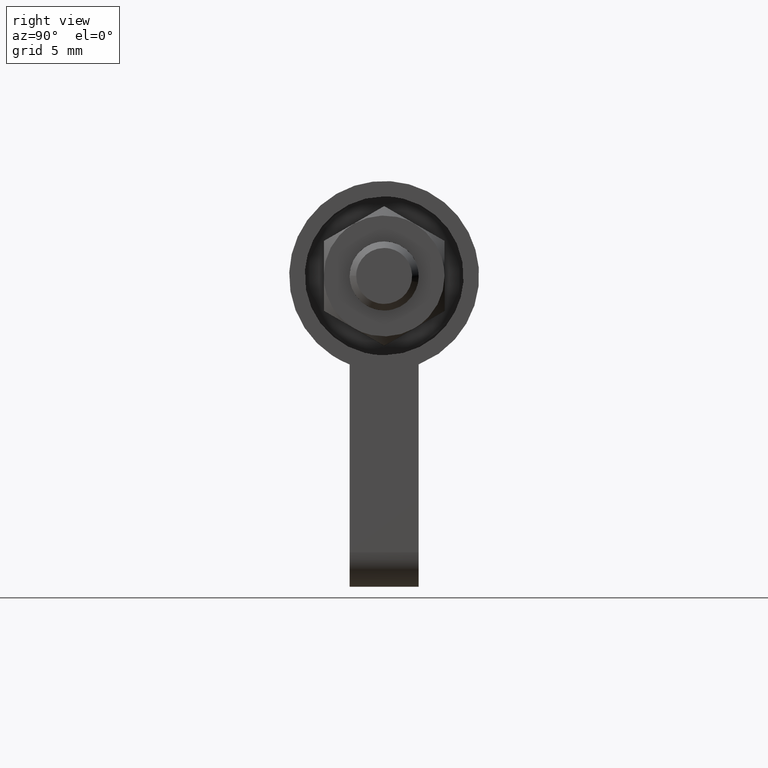
[diagram: clean part render]
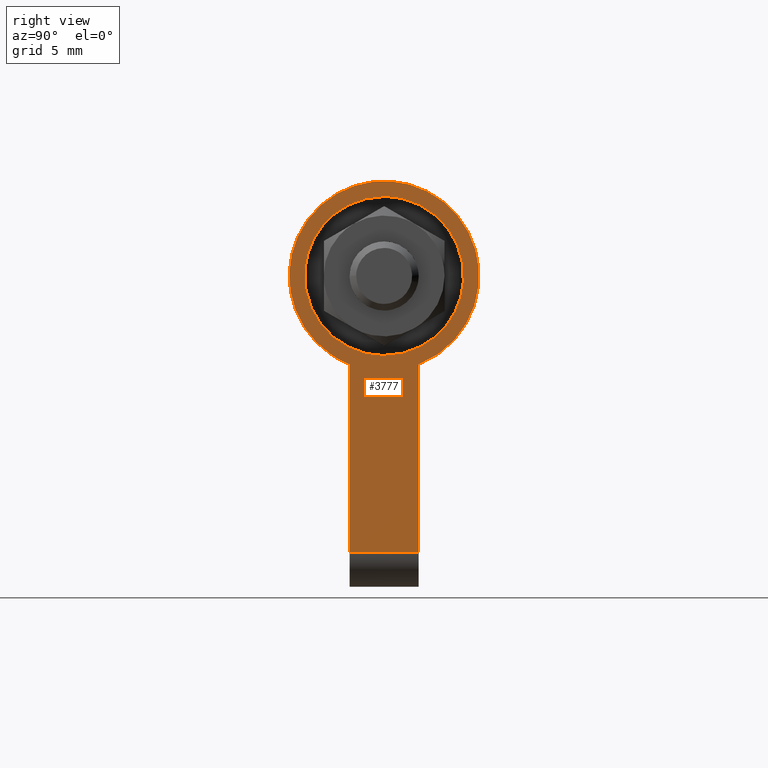
[diagram: same view with one face highlighted and labeled with its STEP entity id]
A machine part, right view. The second image highlights one B-rep face of the part: STEP entity #3777.
In plain terms, the highlighted face is a freeform B-spline surface patch.
Its self-contained STEP definition (entity closure, byte-faithful):
#2945=CARTESIAN_POINT('',(30.500000000000000,4.585819942122170,-0.360909210782504));
#2946=VERTEX_POINT('',#2945);
#2952=CARTESIAN_POINT('',(30.500000000000000,0.0,4.600000000000000));
#2953=VERTEX_POINT('',#2952);
#2954=CARTESIAN_POINT('',(30.500000000000000,4.585819942122170,-0.360909210782504));
#2955=CARTESIAN_POINT('',(30.500000000000007,4.600000000000001,-0.180733171351071));
#2956=CARTESIAN_POINT('',(30.500000000000000,4.600000000000000,0.0));
#2957=CARTESIAN_POINT('',(30.500000000000004,4.600000000000000,4.600000000000000));
#2958=CARTESIAN_POINT('',(30.500000000000000,0.0,4.600000000000000));
#2966=(BOUNDED_CURVE()B_SPLINE_CURVE(2,(#2954,#2955,#2956,#2957,#2958),.UNSPECIFIED.,.F.,.U.)B_SPLINE_CURVE_WITH_KNOTS((3,2,3),(0.736331398929689,0.750000000000000,1.0),.UNSPECIFIED.)CURVE()GEOMETRIC_REPRESENTATION_ITEM()RATIONAL_B_SPLINE_CURVE((0.969723561310084,0.983986237743359,1.0,0.707106781186547,1.0))REPRESENTATION_ITEM(''));
#2967=EDGE_CURVE('',#2946,#2953,#2966,.T.);
#2969=CARTESIAN_POINT('',(30.500000000000000,-4.585819942122170,0.360909210782504));
#2970=VERTEX_POINT('',#2969);
#2971=CARTESIAN_POINT('',(30.500000000000000,0.0,4.600000000000000));
#2972=CARTESIAN_POINT('',(30.499999999999993,-4.252198707429647,4.599999999999999));
#2973=CARTESIAN_POINT('',(30.500000000000000,-4.585819942122170,0.360909210782504));
#2981=(BOUNDED_CURVE()B_SPLINE_CURVE(2,(#2971,#2972,#2973),.UNSPECIFIED.,.F.,.U.)B_SPLINE_CURVE_WITH_KNOTS((3,3),(0.0,0.236331398929689),.UNSPECIFIED.)CURVE()GEOMETRIC_REPRESENTATION_ITEM()RATIONAL_B_SPLINE_CURVE((1.0,0.723120543443189,0.969723561310084))REPRESENTATION_ITEM(''));
#2982=EDGE_CURVE('',#2953,#2970,#2981,.T.);
#3028=CARTESIAN_POINT('',(30.500000000000000,0.0,-4.600000000000000));
#3029=VERTEX_POINT('',#3028);
#3030=CARTESIAN_POINT('',(30.500000000000000,-4.585819942122170,0.360909210782504));
#3031=CARTESIAN_POINT('',(30.500000000000007,-4.600000000000001,0.180733171351071));
#3032=CARTESIAN_POINT('',(30.500000000000000,-4.600000000000000,0.0));
#3033=CARTESIAN_POINT('',(30.500000000000004,-4.600000000000000,-4.600000000000000));
#3034=CARTESIAN_POINT('',(30.500000000000000,0.0,-4.600000000000000));
#3042=(BOUNDED_CURVE()B_SPLINE_CURVE(2,(#3030,#3031,#3032,#3033,#3034),.UNSPECIFIED.,.F.,.U.)B_SPLINE_CURVE_WITH_KNOTS((3,2,3),(0.236331398929689,0.250000000000000,0.500000000000000),.UNSPECIFIED.)CURVE()GEOMETRIC_REPRESENTATION_ITEM()RATIONAL_B_SPLINE_CURVE((0.969723561310084,0.983986237743359,1.0,0.707106781186547,1.0))REPRESENTATION_ITEM(''));
#3043=EDGE_CURVE('',#2970,#3029,#3042,.T.);
#3045=CARTESIAN_POINT('',(30.500000000000000,0.0,-4.600000000000000));
#3046=CARTESIAN_POINT('',(30.499999999999993,4.252198707429647,-4.599999999999999));
#3047=CARTESIAN_POINT('',(30.500000000000000,4.585819942122170,-0.360909210782504));
#3055=(BOUNDED_CURVE()B_SPLINE_CURVE(2,(#3045,#3046,#3047),.UNSPECIFIED.,.F.,.U.)B_SPLINE_CURVE_WITH_KNOTS((3,3),(0.500000000000000,0.736331398929689),.UNSPECIFIED.)CURVE()GEOMETRIC_REPRESENTATION_ITEM()RATIONAL_B_SPLINE_CURVE((1.0,0.723120543443189,0.969723561310084))REPRESENTATION_ITEM(''));
#3056=EDGE_CURVE('',#3029,#2946,#3055,.T.);
#3524=CARTESIAN_POINT('',(30.500000000000000,-2.0,-15.999991999999899));
#3525=VERTEX_POINT('',#3524);
#3546=CARTESIAN_POINT('',(30.500000000000000,2.0,-15.999991999999899));
#3547=VERTEX_POINT('',#3546);
#3561=CARTESIAN_POINT('',(30.500000000000000,-2.0,-15.999991999999899));
#3562=CARTESIAN_POINT('',(30.500000000000000,2.0,-15.999991999999899));
#3563=QUASI_UNIFORM_CURVE('',1,(#3561,#3562),.UNSPECIFIED.,.F.,.U.);
#3564=EDGE_CURVE('',#3525,#3547,#3563,.T.);
#3574=CARTESIAN_POINT('',(30.500000000000000,2.0,-5.123474000000000));
#3575=VERTEX_POINT('',#3574);
#3576=CARTESIAN_POINT('',(30.500000000000000,2.0,-15.999991999999899));
#3577=CARTESIAN_POINT('',(30.500000000000000,2.0,-5.123474000000000));
#3578=QUASI_UNIFORM_CURVE('',1,(#3576,#3577),.UNSPECIFIED.,.F.,.U.);
#3579=EDGE_CURVE('',#3547,#3575,#3578,.T.);
#3638=CARTESIAN_POINT('',(30.500000000000000,-2.0,-5.123474000000000));
#3639=VERTEX_POINT('',#3638);
#3640=CARTESIAN_POINT('',(30.500000000000000,-2.0,-5.123474000000000));
#3641=CARTESIAN_POINT('',(30.500000000000000,-2.0,-15.999991999999899));
#3642=QUASI_UNIFORM_CURVE('',1,(#3640,#3641),.UNSPECIFIED.,.F.,.U.);
#3643=EDGE_CURVE('',#3639,#3525,#3642,.T.);
#3719=CARTESIAN_POINT('',(30.500000000000000,2.0,-5.123474000000000));
#3720=CARTESIAN_POINT('',(30.500000000000000,6.248921072255951,-3.464864210037245));
#3721=CARTESIAN_POINT('',(30.500000000000000,5.405047928931453,1.017568495034563));
#3722=CARTESIAN_POINT('',(30.500000000000000,4.561174785606956,5.500001200106373));
#3723=CARTESIAN_POINT('',(30.500000000000000,1.332268E-015,5.500001200106372));
#3724=CARTESIAN_POINT('',(30.500000000000000,-4.561174785606951,5.500001200106372));
#3725=CARTESIAN_POINT('',(30.500000000000000,-5.405047928931451,1.017568495034564));
#3726=CARTESIAN_POINT('',(30.500000000000000,-6.248921072255953,-3.464864210037245));
#3727=CARTESIAN_POINT('',(30.500000000000000,-2.0,-5.123474000000000));
#3735=(BOUNDED_CURVE()B_SPLINE_CURVE(2,(#3719,#3720,#3721,#3722,#3723,#3724,#3725,#3726,#3727),.UNSPECIFIED.,.F.,.U.)B_SPLINE_CURVE_WITH_KNOTS((3,2,2,2,3),(0.0,0.250000000000000,0.500000000000000,0.750000000000000,1.0),.UNSPECIFIED.)CURVE()GEOMETRIC_REPRESENTATION_ITEM()RATIONAL_B_SPLINE_CURVE((1.0,0.769744189793431,1.0,0.769744189793431,1.0,0.769744189793431,1.0,0.769744189793431,1.0))REPRESENTATION_ITEM(''));
#3736=EDGE_CURVE('',#3575,#3639,#3735,.T.);
#3760=CARTESIAN_POINT('',(30.500000000000000,-6.024497144826172,6.573926222433592));
#3761=CARTESIAN_POINT('',(30.500000000000000,6.024497402002152,6.573926222433592));
#3762=CARTESIAN_POINT('',(30.500000000000000,-6.024497144826172,-17.073917214552068));
#3763=CARTESIAN_POINT('',(30.500000000000000,6.024497402002152,-17.073917214552068));
#3764=B_SPLINE_SURFACE_WITH_KNOTS('',1,1,((#3760,#3762),(#3761,#3763)),.UNSPECIFIED.,.F.,.F.,.U.,(2,2),(2,2),(0.0,12.048994546828320),(0.0,23.647843436985660),.UNSPECIFIED.);
#3765=ORIENTED_EDGE('',*,*,#3643,.T.);
#3766=ORIENTED_EDGE('',*,*,#3564,.T.);
#3767=ORIENTED_EDGE('',*,*,#3579,.T.);
#3768=ORIENTED_EDGE('',*,*,#3736,.T.);
#3769=EDGE_LOOP('',(#3765,#3766,#3767,#3768));
#3770=FACE_OUTER_BOUND('',#3769,.T.);
#3771=ORIENTED_EDGE('',*,*,#3056,.F.);
#3772=ORIENTED_EDGE('',*,*,#3043,.F.);
#3773=ORIENTED_EDGE('',*,*,#2982,.F.);
#3774=ORIENTED_EDGE('',*,*,#2967,.F.);
#3775=EDGE_LOOP('',(#3771,#3772,#3773,#3774));
#3776=FACE_BOUND('',#3775,.T.);
#3777=ADVANCED_FACE('',(#3770,#3776),#3764,.F.);